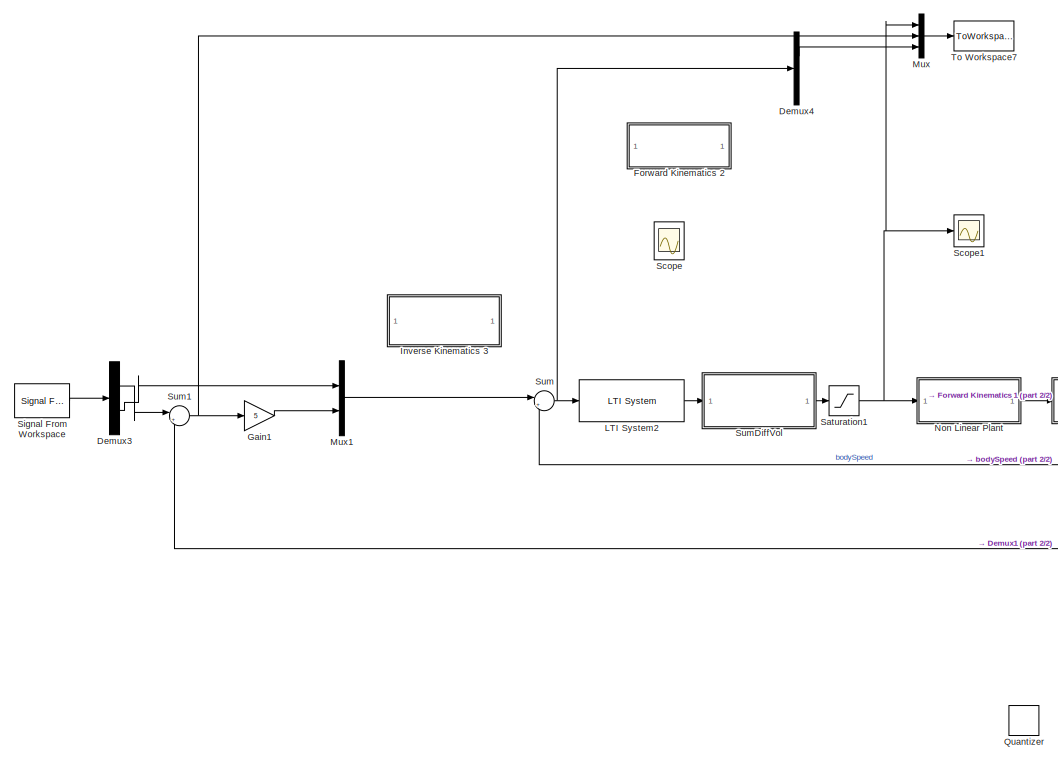
[diagram: root canvas - part 1/2, left side, full height]
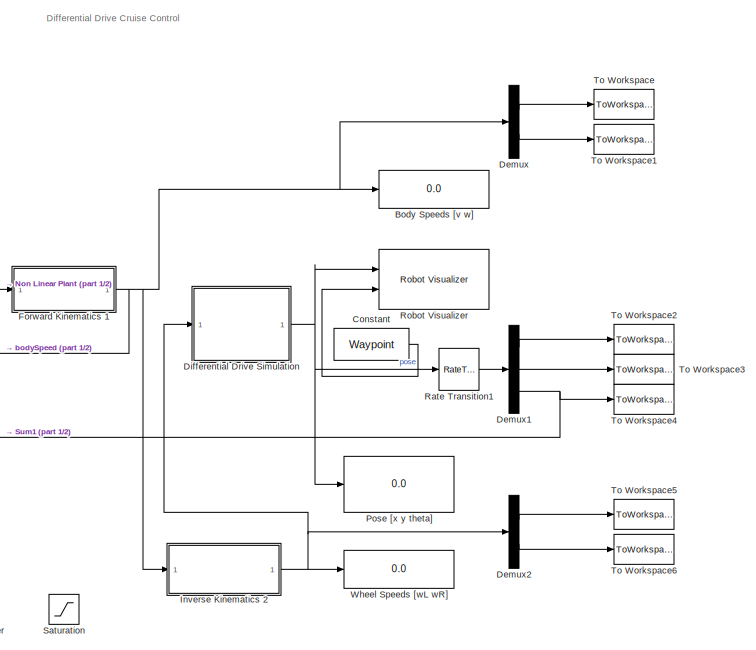
[diagram: root canvas - part 2/2, right side, full height]
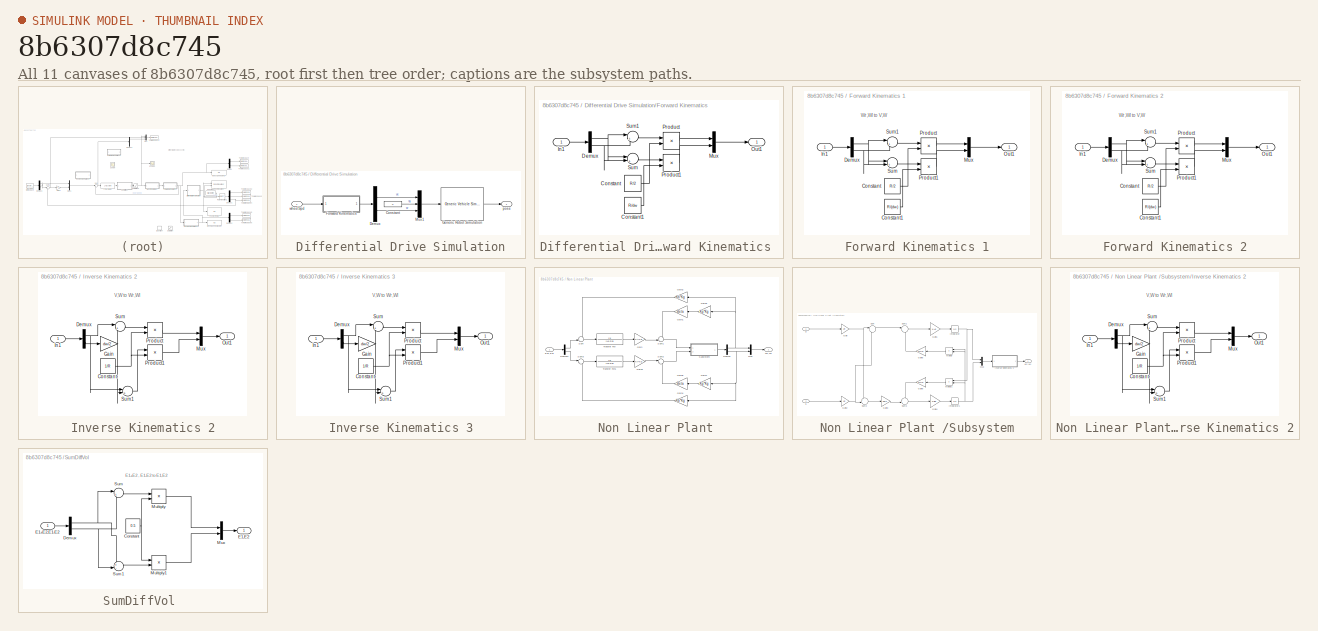
[diagram: thumbnail index - all 11 canvases of the model, root first then tree order]
MODEL slx_8b6307d8c745
KIND model
CONFIG AbsTol = auto
CONFIG EnableMultiTasking = on
CONFIG FixedStep = 0.01
CONFIG MaxStep = auto
CONFIG MinStep = auto
CONFIG PreLoadFcn = sampleTime = 0.05;\n\n% Vehicle Parameters\nR = 0.1;\nL = 0.5;
CONFIG RelTol = 1e-3
CONFIG SampleTimeConstraint = Unconstrained
CONFIG Solver = VariableStepAuto
CONFIG SolverName = VariableStepAuto
CONFIG StartTime = 0.0
CONFIG StopTime = inf
BLOCK [Display] Body Speeds [v w]
  Decimation = 1
  Ports = [1]
BLOCK [Constant] Constant
  SampleTime = sampleTime
  Value = Waypoint
BLOCK [Demux] Demux
  DisplayOption = bar
  Outputs = 2
  Ports = [1, 2]
BLOCK [Demux] Demux1
  DisplayOption = bar
  Outputs = 3
  Ports = [1, 3]
BLOCK [Demux] Demux2
  DisplayOption = bar
  Outputs = 2
  Ports = [1, 2]
BLOCK [Demux] Demux3
  DisplayOption = bar
  Outputs = 2
  Ports = [1, 2]
BLOCK [Demux] Demux4
  DisplayOption = bar
  Outputs = 2
  Ports = [1, 2]
BLOCK [SubSystem] Differential Drive Simulation
  AncestorBlock = mobileRoboticsLib/Kinematic Models/Differential Drive/Differential Drive Simulation
  OverrideUsingVariant = mode==2
  Ports = [1, 1]
  RequestExecContextInheritance = off
BLOCK [Constant] Differential Drive Simulation/Constant
  Value = 0
BLOCK [Demux] Differential Drive Simulation/Demux
  DisplayOption = bar
  Outputs = 2
  Ports = [1, 2]
BLOCK [SubSystem] Differential Drive Simulation/Forward Kinematics 
  Ports = [1, 1]
  RequestExecContextInheritance = off
BLOCK [Constant] Differential Drive Simulation/Forward Kinematics /Constant
  Value = R/2
BLOCK [Constant] Differential Drive Simulation/Forward Kinematics /Constant1
  Value = R/dw
BLOCK [Demux] Differential Drive Simulation/Forward Kinematics /Demux
  DisplayOption = bar
  Outputs = 2
  Ports = [1, 2]
BLOCK [Inport] Differential Drive Simulation/Forward Kinematics /In1
  IconDisplay = Port number
BLOCK [Mux] Differential Drive Simulation/Forward Kinematics /Mux
  DisplayOption = bar
  Inputs = 2
  Ports = [2, 1]
BLOCK [Outport] Differential Drive Simulation/Forward Kinematics /Out1
  IconDisplay = Port number
BLOCK [Product] Differential Drive Simulation/Forward Kinematics /Product
  InputSameDT = off
  OutDataTypeStr = Inherit: Inherit via internal rule
  Ports = [2, 1]
  RndMeth = Floor
  SaturateOnIntegerOverflow = off
BLOCK [Product] Differential Drive Simulation/Forward Kinematics /Product1
  InputSameDT = off
  OutDataTypeStr = Inherit: Inherit via internal rule
  Ports = [2, 1]
  RndMeth = Floor
  SaturateOnIntegerOverflow = off
BLOCK [Sum] Differential Drive Simulation/Forward Kinematics /Sum
  IconShape = round
  InputSameDT = off
  Inputs = |+-
  OutDataTypeStr = Inherit: Inherit via internal rule
  Ports = [2, 1]
  SaturateOnIntegerOverflow = off
BLOCK [Sum] Differential Drive Simulation/Forward Kinematics /Sum1
  IconShape = round
  InputSameDT = off
  Inputs = |++
  OutDataTypeStr = Inherit: Inherit via internal rule
  Ports = [2, 1]
  SaturateOnIntegerOverflow = off
BLOCK [Reference] Differential Drive Simulation/Generic Robot Simulation  REF=mobileRoboticsLib/Utilities/Generic Vehicle Simulation
  Ports = [1, 1]
  SourceBlock = mobileRoboticsLib/Utilities/Generic Vehicle Simulation
  SourceProductName = Mobile Robotics Simulation Toolbox
  SourceType = Generic Vehicle Simulation
BLOCK [Mux] Differential Drive Simulation/Mux1
  DisplayOption = bar
  Inputs = 3
  Ports = [3, 1]
BLOCK [Outport] Differential Drive Simulation/pose
  IconDisplay = Port number
BLOCK [Inport] Differential Drive Simulation/wheelSpd
  IconDisplay = Port number
BLOCK [SubSystem] Forward Kinematics 1
  Ports = [1, 1]
  RequestExecContextInheritance = off
BLOCK [Constant] Forward Kinematics 1/Constant
  Value = R/2
BLOCK [Constant] Forward Kinematics 1/Constant1
  Value = R/(dw)
BLOCK [Demux] Forward Kinematics 1/Demux
  DisplayOption = bar
  Outputs = 2
  Ports = [1, 2]
BLOCK [Inport] Forward Kinematics 1/In1
  IconDisplay = Port number
BLOCK [Mux] Forward Kinematics 1/Mux
  DisplayOption = bar
  Inputs = 2
  Ports = [2, 1]
BLOCK [Outport] Forward Kinematics 1/Out1
  IconDisplay = Port number
BLOCK [Product] Forward Kinematics 1/Product
  InputSameDT = off
  OutDataTypeStr = Inherit: Inherit via internal rule
  Ports = [2, 1]
  RndMeth = Floor
  SaturateOnIntegerOverflow = off
BLOCK [Product] Forward Kinematics 1/Product1
  InputSameDT = off
  OutDataTypeStr = Inherit: Inherit via internal rule
  Ports = [2, 1]
  RndMeth = Floor
  SaturateOnIntegerOverflow = off
BLOCK [Sum] Forward Kinematics 1/Sum
  IconShape = round
  InputSameDT = off
  Inputs = |+-
  OutDataTypeStr = Inherit: Inherit via internal rule
  Ports = [2, 1]
  SaturateOnIntegerOverflow = off
BLOCK [Sum] Forward Kinematics 1/Sum1
  IconShape = round
  InputSameDT = off
  Inputs = |++
  OutDataTypeStr = Inherit: Inherit via internal rule
  Ports = [2, 1]
  SaturateOnIntegerOverflow = off
BLOCK [SubSystem] Forward Kinematics 2
  Ports = [1, 1]
  RequestExecContextInheritance = off
BLOCK [Constant] Forward Kinematics 2/Constant
  Value = R/2
BLOCK [Constant] Forward Kinematics 2/Constant1
  Value = R/(dw)
BLOCK [Demux] Forward Kinematics 2/Demux
  DisplayOption = bar
  Outputs = 2
  Ports = [1, 2]
BLOCK [Inport] Forward Kinematics 2/In1
  IconDisplay = Port number
BLOCK [Mux] Forward Kinematics 2/Mux
  DisplayOption = bar
  Inputs = 2
  Ports = [2, 1]
BLOCK [Outport] Forward Kinematics 2/Out1
  IconDisplay = Port number
BLOCK [Product] Forward Kinematics 2/Product
  InputSameDT = off
  OutDataTypeStr = Inherit: Inherit via internal rule
  Ports = [2, 1]
  RndMeth = Floor
  SaturateOnIntegerOverflow = off
BLOCK [Product] Forward Kinematics 2/Product1
  InputSameDT = off
  OutDataTypeStr = Inherit: Inherit via internal rule
  Ports = [2, 1]
  RndMeth = Floor
  SaturateOnIntegerOverflow = off
BLOCK [Sum] Forward Kinematics 2/Sum
  IconShape = round
  InputSameDT = off
  Inputs = |+-
  OutDataTypeStr = Inherit: Inherit via internal rule
  Ports = [2, 1]
  SaturateOnIntegerOverflow = off
BLOCK [Sum] Forward Kinematics 2/Sum1
  IconShape = round
  InputSameDT = off
  Inputs = |++
  OutDataTypeStr = Inherit: Inherit via internal rule
  Ports = [2, 1]
  SaturateOnIntegerOverflow = off
BLOCK [Gain] Gain1
  Gain = 5
  OutDataTypeStr = Inherit: Inherit via internal rule
  ParamDataTypeStr = Inherit: Inherit via internal rule
  SaturateOnIntegerOverflow = off
BLOCK [SubSystem] Inverse Kinematics 2
  Ports = [1, 1]
  RequestExecContextInheritance = off
BLOCK [Constant] Inverse Kinematics 2/Constant
  Value = 1/R
BLOCK [Demux] Inverse Kinematics 2/Demux
  DisplayOption = bar
  Outputs = 2
  Ports = [1, 2]
BLOCK [Gain] Inverse Kinematics 2/Gain
  Gain = dw/2
  OutDataTypeStr = Inherit: Inherit via internal rule
  ParamDataTypeStr = Inherit: Inherit via internal rule
  SaturateOnIntegerOverflow = off
BLOCK [Inport] Inverse Kinematics 2/In1
  IconDisplay = Port number
BLOCK [Mux] Inverse Kinematics 2/Mux
  DisplayOption = bar
  Inputs = 2
  Ports = [2, 1]
BLOCK [Outport] Inverse Kinematics 2/Out1
  IconDisplay = Port number
BLOCK [Product] Inverse Kinematics 2/Product
  InputSameDT = off
  OutDataTypeStr = Inherit: Inherit via internal rule
  Ports = [2, 1]
  RndMeth = Floor
  SaturateOnIntegerOverflow = off
BLOCK [Product] Inverse Kinematics 2/Product1
  InputSameDT = off
  OutDataTypeStr = Inherit: Inherit via internal rule
  Ports = [2, 1]
  RndMeth = Floor
  SaturateOnIntegerOverflow = off
BLOCK [Sum] Inverse Kinematics 2/Sum
  IconShape = round
  InputSameDT = off
  Inputs = |++
  OutDataTypeStr = Inherit: Inherit via internal rule
  Ports = [2, 1]
  SaturateOnIntegerOverflow = off
BLOCK [Sum] Inverse Kinematics 2/Sum1
  IconShape = round
  InputSameDT = off
  Inputs = |+-
  OutDataTypeStr = Inherit: Inherit via internal rule
  Ports = [2, 1]
  SaturateOnIntegerOverflow = off
BLOCK [SubSystem] Inverse Kinematics 3
  Ports = [1, 1]
  RequestExecContextInheritance = off
BLOCK [Constant] Inverse Kinematics 3/Constant
  Value = 1/R
BLOCK [Demux] Inverse Kinematics 3/Demux
  DisplayOption = bar
  Outputs = 2
  Ports = [1, 2]
BLOCK [Gain] Inverse Kinematics 3/Gain
  Gain = dw/2
  OutDataTypeStr = Inherit: Inherit via internal rule
  ParamDataTypeStr = Inherit: Inherit via internal rule
  SaturateOnIntegerOverflow = off
BLOCK [Inport] Inverse Kinematics 3/In1
  IconDisplay = Port number
BLOCK [Mux] Inverse Kinematics 3/Mux
  DisplayOption = bar
  Inputs = 2
  Ports = [2, 1]
BLOCK [Outport] Inverse Kinematics 3/Out1
  IconDisplay = Port number
BLOCK [Product] Inverse Kinematics 3/Product
  InputSameDT = off
  OutDataTypeStr = Inherit: Inherit via internal rule
  Ports = [2, 1]
  RndMeth = Floor
  SaturateOnIntegerOverflow = off
BLOCK [Product] Inverse Kinematics 3/Product1
  InputSameDT = off
  OutDataTypeStr = Inherit: Inherit via internal rule
  Ports = [2, 1]
  RndMeth = Floor
  SaturateOnIntegerOverflow = off
BLOCK [Sum] Inverse Kinematics 3/Sum
  IconShape = round
  InputSameDT = off
  Inputs = |++
  OutDataTypeStr = Inherit: Inherit via internal rule
  Ports = [2, 1]
  SaturateOnIntegerOverflow = off
BLOCK [Sum] Inverse Kinematics 3/Sum1
  IconShape = round
  InputSameDT = off
  Inputs = |+-
  OutDataTypeStr = Inherit: Inherit via internal rule
  Ports = [2, 1]
  SaturateOnIntegerOverflow = off
BLOCK [Reference] LTI System2  REF=cstblocks/LTI System
  Ports = [1, 1]
  SourceBlock = cstblocks/LTI System
  SourceProductBaseCode = CT
  SourceProductName = Control System Toolbox
  SourceType = LTI Block
BLOCK [Mux] Mux
  DisplayOption = bar
  Inputs = 3
  Ports = [3, 1]
BLOCK [Mux] Mux1
  DisplayOption = bar
  Inputs = 2
  Ports = [2, 1]
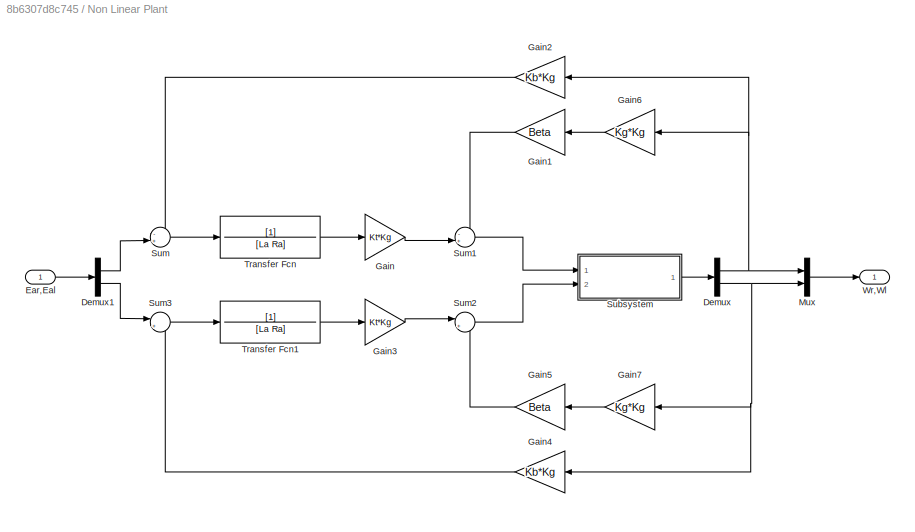
BLOCK [SubSystem] Non Linear Plant 
  Ports = [1, 1]
  RequestExecContextInheritance = off
BLOCK [Demux] Non Linear Plant /Demux
  DisplayOption = bar
  Outputs = 2
  Ports = [1, 2]
BLOCK [Demux] Non Linear Plant /Demux1
  DisplayOption = bar
  Outputs = 2
  Ports = [1, 2]
BLOCK [Inport] Non Linear Plant /Ear,Eal
  IconDisplay = Port number
BLOCK [Gain] Non Linear Plant /Gain
  Gain = Kt*Kg
  OutDataTypeStr = Inherit: Inherit via internal rule
  ParamDataTypeStr = Inherit: Inherit via internal rule
  SaturateOnIntegerOverflow = off
BLOCK [Gain] Non Linear Plant /Gain1
  Gain = Beta
  OutDataTypeStr = Inherit: Inherit via internal rule
  ParamDataTypeStr = Inherit: Inherit via internal rule
  SaturateOnIntegerOverflow = off
BLOCK [Gain] Non Linear Plant /Gain2
  Gain = Kb*Kg
  OutDataTypeStr = Inherit: Inherit via internal rule
  ParamDataTypeStr = Inherit: Inherit via internal rule
  SaturateOnIntegerOverflow = off
BLOCK [Gain] Non Linear Plant /Gain3
  Gain = Kt*Kg
  OutDataTypeStr = Inherit: Inherit via internal rule
  ParamDataTypeStr = Inherit: Inherit via internal rule
  SaturateOnIntegerOverflow = off
BLOCK [Gain] Non Linear Plant /Gain4
  Gain = Kb*Kg
  OutDataTypeStr = Inherit: Inherit via internal rule
  ParamDataTypeStr = Inherit: Inherit via internal rule
  SaturateOnIntegerOverflow = off
BLOCK [Gain] Non Linear Plant /Gain5
  Gain = Beta
  OutDataTypeStr = Inherit: Inherit via internal rule
  ParamDataTypeStr = Inherit: Inherit via internal rule
  SaturateOnIntegerOverflow = off
BLOCK [Gain] Non Linear Plant /Gain6
  Gain = Kg*Kg
  OutDataTypeStr = Inherit: Inherit via internal rule
  ParamDataTypeStr = Inherit: Inherit via internal rule
  SaturateOnIntegerOverflow = off
BLOCK [Gain] Non Linear Plant /Gain7
  Gain = Kg*Kg
  OutDataTypeStr = Inherit: Inherit via internal rule
  ParamDataTypeStr = Inherit: Inherit via internal rule
  SaturateOnIntegerOverflow = off
BLOCK [Mux] Non Linear Plant /Mux
  DisplayOption = bar
  Inputs = 2
  Ports = [2, 1]
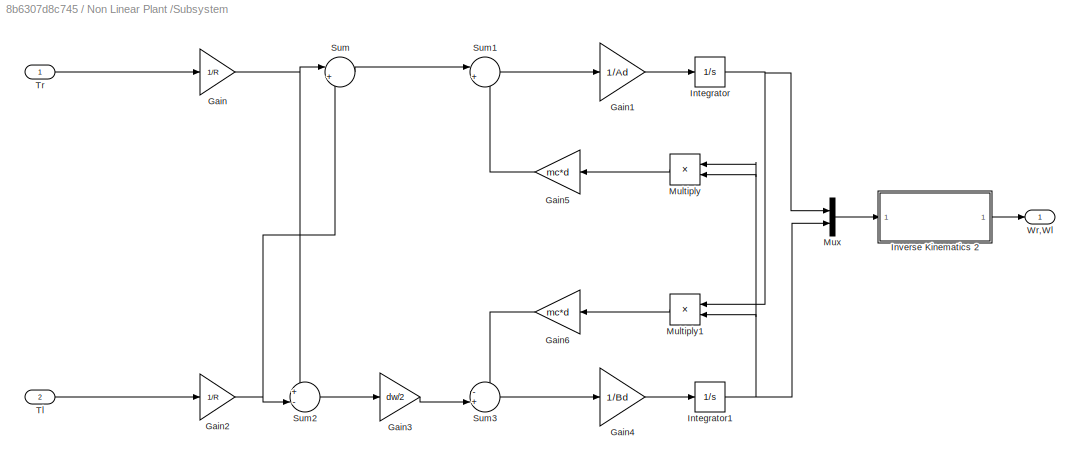
BLOCK [SubSystem] Non Linear Plant /Subsystem
  Ports = [2, 1]
  RequestExecContextInheritance = off
BLOCK [Gain] Non Linear Plant /Subsystem/Gain
  Gain = 1/R
  OutDataTypeStr = Inherit: Inherit via internal rule
  ParamDataTypeStr = Inherit: Inherit via internal rule
  SaturateOnIntegerOverflow = off
BLOCK [Gain] Non Linear Plant /Subsystem/Gain1
  Gain = 1/Ad
  OutDataTypeStr = Inherit: Inherit via internal rule
  ParamDataTypeStr = Inherit: Inherit via internal rule
  SaturateOnIntegerOverflow = off
BLOCK [Gain] Non Linear Plant /Subsystem/Gain2
  Gain = 1/R
  OutDataTypeStr = Inherit: Inherit via internal rule
  ParamDataTypeStr = Inherit: Inherit via internal rule
  SaturateOnIntegerOverflow = off
BLOCK [Gain] Non Linear Plant /Subsystem/Gain3
  Gain = dw/2
  OutDataTypeStr = Inherit: Inherit via internal rule
  ParamDataTypeStr = Inherit: Inherit via internal rule
  SaturateOnIntegerOverflow = off
BLOCK [Gain] Non Linear Plant /Subsystem/Gain4
  Gain = 1/Bd
  OutDataTypeStr = Inherit: Inherit via internal rule
  ParamDataTypeStr = Inherit: Inherit via internal rule
  SaturateOnIntegerOverflow = off
BLOCK [Gain] Non Linear Plant /Subsystem/Gain5
  Gain = mc*d
  OutDataTypeStr = Inherit: Inherit via internal rule
  ParamDataTypeStr = Inherit: Inherit via internal rule
  SaturateOnIntegerOverflow = off
BLOCK [Gain] Non Linear Plant /Subsystem/Gain6
  Gain = mc*d
  OutDataTypeStr = Inherit: Inherit via internal rule
  ParamDataTypeStr = Inherit: Inherit via internal rule
  SaturateOnIntegerOverflow = off
BLOCK [Integrator] Non Linear Plant /Subsystem/Integrator
  Ports = [1, 1]
BLOCK [Integrator] Non Linear Plant /Subsystem/Integrator1
  Ports = [1, 1]
BLOCK [SubSystem] Non Linear Plant /Subsystem/Inverse Kinematics 2
  Ports = [1, 1]
  RequestExecContextInheritance = off
BLOCK [Constant] Non Linear Plant /Subsystem/Inverse Kinematics 2/Constant
  Value = 1/R
BLOCK [Demux] Non Linear Plant /Subsystem/Inverse Kinematics 2/Demux
  DisplayOption = bar
  Outputs = 2
  Ports = [1, 2]
BLOCK [Gain] Non Linear Plant /Subsystem/Inverse Kinematics 2/Gain
  Gain = dw/2
  OutDataTypeStr = Inherit: Inherit via internal rule
  ParamDataTypeStr = Inherit: Inherit via internal rule
  SaturateOnIntegerOverflow = off
BLOCK [Inport] Non Linear Plant /Subsystem/Inverse Kinematics 2/In1
  IconDisplay = Port number
BLOCK [Mux] Non Linear Plant /Subsystem/Inverse Kinematics 2/Mux
  DisplayOption = bar
  Inputs = 2
  Ports = [2, 1]
BLOCK [Outport] Non Linear Plant /Subsystem/Inverse Kinematics 2/Out1
  IconDisplay = Port number
BLOCK [Product] Non Linear Plant /Subsystem/Inverse Kinematics 2/Product
  InputSameDT = off
  OutDataTypeStr = Inherit: Inherit via internal rule
  Ports = [2, 1]
  RndMeth = Floor
  SaturateOnIntegerOverflow = off
BLOCK [Product] Non Linear Plant /Subsystem/Inverse Kinematics 2/Product1
  InputSameDT = off
  OutDataTypeStr = Inherit: Inherit via internal rule
  Ports = [2, 1]
  RndMeth = Floor
  SaturateOnIntegerOverflow = off
BLOCK [Sum] Non Linear Plant /Subsystem/Inverse Kinematics 2/Sum
  IconShape = round
  InputSameDT = off
  Inputs = |++
  OutDataTypeStr = Inherit: Inherit via internal rule
  Ports = [2, 1]
  SaturateOnIntegerOverflow = off
BLOCK [Sum] Non Linear Plant /Subsystem/Inverse Kinematics 2/Sum1
  IconShape = round
  InputSameDT = off
  Inputs = |+-
  OutDataTypeStr = Inherit: Inherit via internal rule
  Ports = [2, 1]
  SaturateOnIntegerOverflow = off
BLOCK [Product] Non Linear Plant /Subsystem/Multiply
  InputSameDT = off
  OutDataTypeStr = Inherit: Inherit via internal rule
  Ports = [2, 1]
  RndMeth = Floor
  SaturateOnIntegerOverflow = off
BLOCK [Product] Non Linear Plant /Subsystem/Multiply1
  InputSameDT = off
  OutDataTypeStr = Inherit: Inherit via internal rule
  Ports = [2, 1]
  RndMeth = Floor
  SaturateOnIntegerOverflow = off
BLOCK [Mux] Non Linear Plant /Subsystem/Mux
  DisplayOption = bar
  Inputs = 2
  Ports = [2, 1]
BLOCK [Sum] Non Linear Plant /Subsystem/Sum
  IconShape = round
  InputSameDT = off
  Inputs = |++
  OutDataTypeStr = Inherit: Inherit via internal rule
  Ports = [2, 1]
  SaturateOnIntegerOverflow = off
BLOCK [Sum] Non Linear Plant /Subsystem/Sum1
  IconShape = round
  InputSameDT = off
  Inputs = |++
  OutDataTypeStr = Inherit: Inherit via internal rule
  Ports = [2, 1]
  SaturateOnIntegerOverflow = off
BLOCK [Sum] Non Linear Plant /Subsystem/Sum2
  IconShape = round
  InputSameDT = off
  Inputs = +-|
  OutDataTypeStr = Inherit: Inherit via internal rule
  Ports = [2, 1]
  SaturateOnIntegerOverflow = off
BLOCK [Sum] Non Linear Plant /Subsystem/Sum3
  IconShape = round
  InputSameDT = off
  Inputs = -+|
  OutDataTypeStr = Inherit: Inherit via internal rule
  Ports = [2, 1]
  SaturateOnIntegerOverflow = off
BLOCK [Inport] Non Linear Plant /Subsystem/Tl
  IconDisplay = Port number
  Port = 2
BLOCK [Inport] Non Linear Plant /Subsystem/Tr
  IconDisplay = Port number and signal name
BLOCK [Outport] Non Linear Plant /Subsystem/Wr,Wl
  IconDisplay = Port number
BLOCK [Sum] Non Linear Plant /Sum
  IconShape = round
  InputSameDT = off
  Inputs = -+|
  OutDataTypeStr = Inherit: Inherit via internal rule
  Ports = [2, 1]
  SaturateOnIntegerOverflow = off
BLOCK [Sum] Non Linear Plant /Sum1
  IconShape = round
  InputSameDT = off
  Inputs = -+|
  OutDataTypeStr = Inherit: Inherit via internal rule
  Ports = [2, 1]
  SaturateOnIntegerOverflow = off
BLOCK [Sum] Non Linear Plant /Sum2
  IconShape = round
  InputSameDT = off
  Inputs = |+-
  OutDataTypeStr = Inherit: Inherit via internal rule
  Ports = [2, 1]
  SaturateOnIntegerOverflow = off
BLOCK [Sum] Non Linear Plant /Sum3
  IconShape = round
  InputSameDT = off
  Inputs = |+-
  OutDataTypeStr = Inherit: Inherit via internal rule
  Ports = [2, 1]
  SaturateOnIntegerOverflow = off
BLOCK [TransferFcn] Non Linear Plant /Transfer Fcn
  Denominator = [La Ra]
BLOCK [TransferFcn] Non Linear Plant /Transfer Fcn1
  Denominator = [La Ra]
BLOCK [Outport] Non Linear Plant /Wr,Wl
  IconDisplay = Port number
BLOCK [Display] Pose [x y theta]
  Decimation = 1
  Ports = [1]
BLOCK [Quantizer] Quantizer
BLOCK [RateTransition] Rate Transition1
  OutPortSampleTime = 0.01
BLOCK [Reference] Robot Visualizer  REF=mobileRoboticsLib/Environments/Robot Visualizer
  Ports = [2]
  Priority = 99
  SourceBlock = mobileRoboticsLib/Environments/Robot Visualizer
  SourceProductName = Mobile Robotics Simulation Library
  SourceType = Visualizer2D
BLOCK [Saturate] Saturation
  InputPortMap = u0
  Ports = [1, 1]
BLOCK [Saturate] Saturation1
  InputPortMap = u0
  LowerLimit = 0
  Ports = [1, 1]
  UpperLimit = 30
BLOCK [Scope] Scope
  Floating = off
  NumInputPorts = 1
  Ports = [1]
  ScopeSpecificationString = Simulink.scopes.TimeScopeBlockCfg('CurrentConfiguration', extmgr.ConfigurationSet(extmgr.Configuration('Core','General UI',true),extmgr.Configuration('Core','Source UI',true),extmgr.Configuration('Sources','WiredSimulink',true),extmgr.Configuration('Visuals','Time Domain',true,'SerializedDisplays',{struct('MinYLimReal','-0.07902','MaxYLimReal','0.0187','YLabelReal','','MinYLimMag','0.00000','MaxYL...<+1399ch>
BLOCK [Scope] Scope1
  Floating = off
  NumInputPorts = 1
  Ports = [1]
  ScopeSpecificationString = Simulink.scopes.TimeScopeBlockCfg('CurrentConfiguration', extmgr.ConfigurationSet(extmgr.Configuration('Core','General UI',true),extmgr.Configuration('Core','Source UI',true),extmgr.Configuration('Sources','WiredSimulink',true,'DataLoggingVariableName','ScopeData1'),extmgr.Configuration('Visuals','Time Domain',true,'SerializedDisplays',{struct('MinYLimReal','21.10512','MaxYLimReal','30.98832','YLa...<+1467ch>
BLOCK [Reference] Signal From Workspace  REF=dspsrcs4/Signal From
Workspace
  Ports = [0, 1]
  SourceBlock = dspsrcs4/Signal From\nWorkspace
  SourceProductBaseCode = DS
  SourceProductName = DSP System Toolbox
  SourceType = Signal From Workspace
BLOCK [Sum] Sum
  IconShape = round
  InputSameDT = off
  Inputs = |+-
  OutDataTypeStr = Inherit: Inherit via internal rule
  Ports = [2, 1]
  SaturateOnIntegerOverflow = off
BLOCK [Sum] Sum1
  IconShape = round
  InputSameDT = off
  Inputs = |+-
  OutDataTypeStr = Inherit: Inherit via internal rule
  Ports = [2, 1]
  SaturateOnIntegerOverflow = off
BLOCK [SubSystem] SumDiffVol 
  Ports = [1, 1]
  RequestExecContextInheritance = off
BLOCK [Constant] SumDiffVol /Constant
  Value = 0.5
BLOCK [Demux] SumDiffVol /Demux
  DisplayOption = bar
  Outputs = 2
  Ports = [1, 2]
BLOCK [Inport] SumDiffVol /E1+E2,E1-E2
  IconDisplay = Port number
BLOCK [Outport] SumDiffVol /E1,E2
  IconDisplay = Port number
BLOCK [Product] SumDiffVol /Multiply
  InputSameDT = off
  OutDataTypeStr = Inherit: Inherit via internal rule
  Ports = [2, 1]
  RndMeth = Floor
  SaturateOnIntegerOverflow = off
BLOCK [Product] SumDiffVol /Multiply1
  InputSameDT = off
  OutDataTypeStr = Inherit: Inherit via internal rule
  Ports = [2, 1]
  RndMeth = Floor
  SaturateOnIntegerOverflow = off
BLOCK [Mux] SumDiffVol /Mux
  DisplayOption = bar
  Inputs = 2
  Ports = [2, 1]
BLOCK [Sum] SumDiffVol /Sum
  IconShape = round
  InputSameDT = off
  Inputs = |++
  OutDataTypeStr = Inherit: Inherit via internal rule
  Ports = [2, 1]
  SaturateOnIntegerOverflow = off
BLOCK [Sum] SumDiffVol /Sum1
  IconShape = round
  InputSameDT = off
  Inputs = +-|
  OutDataTypeStr = Inherit: Inherit via internal rule
  Ports = [2, 1]
  SaturateOnIntegerOverflow = off
BLOCK [ToWorkspace] To Workspace
  FixptAsFi = on
  MaxDataPoints = inf
  Ports = [1]
  SampleTime = -1
  Save2DSignal = 3-D array (concatenate along third dimension)
  VariableName = v
BLOCK [ToWorkspace] To Workspace1
  FixptAsFi = on
  MaxDataPoints = inf
  Ports = [1]
  SampleTime = -1
  Save2DSignal = 3-D array (concatenate along third dimension)
  VariableName = w
BLOCK [ToWorkspace] To Workspace2
  FixptAsFi = on
  MaxDataPoints = inf
  Ports = [1]
  SampleTime = -1
  Save2DSignal = 3-D array (concatenate along third dimension)
  VariableName = X
BLOCK [ToWorkspace] To Workspace3
  FixptAsFi = on
  MaxDataPoints = inf
  Ports = [1]
  SampleTime = -1
  Save2DSignal = 3-D array (concatenate along third dimension)
  VariableName = Y
BLOCK [ToWorkspace] To Workspace4
  FixptAsFi = on
  MaxDataPoints = inf
  Ports = [1]
  SampleTime = -1
  Save2DSignal = 3-D array (concatenate along third dimension)
  VariableName = theta
BLOCK [ToWorkspace] To Workspace5
  FixptAsFi = on
  MaxDataPoints = inf
  Ports = [1]
  SampleTime = -1
  Save2DSignal = 3-D array (concatenate along third dimension)
  VariableName = wL
BLOCK [ToWorkspace] To Workspace6
  FixptAsFi = on
  MaxDataPoints = inf
  Ports = [1]
  SampleTime = -1
  Save2DSignal = 3-D array (concatenate along third dimension)
  VariableName = wR
BLOCK [ToWorkspace] To Workspace7
  FixptAsFi = on
  MaxDataPoints = inf
  Ports = [1]
  SampleTime = -1
  Save2DSignal = 3-D array (concatenate along third dimension)
  SaveFormat = Timeseries
  VariableName = v1
BLOCK [Display] Wheel Speeds [wL wR]
  Decimation = 1
  Ports = [1]
ANNOTATION (root): Differential Drive Cruise Control
ANNOTATION Forward Kinematics 1: Wr,Wl to V,W
ANNOTATION Forward Kinematics 2: Wr,Wl to V,W
ANNOTATION Inverse Kinematics 2: V,W to Wr,Wl
ANNOTATION Inverse Kinematics 3: V,W to Wr,Wl
ANNOTATION Non Linear Plant /Subsystem/Inverse Kinematics 2: V,W to Wr,Wl
ANNOTATION SumDiffVol : E1+E2 , E1-E2 to E1,E2
LINE Constant:1 -> Robot Visualizer:2
LINE Demux1:1 -> To Workspace2:1
LINE Demux1:2 -> To Workspace3:1
NET Demux1:3 -> Sum1:2, To Workspace4:1
LINE Demux2:1 -> To Workspace5:1
LINE Demux2:2 -> To Workspace6:1
LINE Demux3:1 -> Sum1:1
LINE Demux3:2 -> Mux1:1
LINE Demux4:1 -> Mux:3
LINE Demux:1 -> To Workspace:1
LINE Demux:2 -> To Workspace1:1
NET Differential Drive Simulation:1 -> Pose [x y theta]:1, Rate Transition1:1, Robot Visualizer:1
LINE Forward Kinematics 1/Constant1:1 -> Forward Kinematics 1/Product1:2
LINE Forward Kinematics 1/Constant:1 -> Forward Kinematics 1/Product:2
NET Forward Kinematics 1/Demux:1 -> Forward Kinematics 1/Sum1:1, Forward Kinematics 1/Sum:1
NET Forward Kinematics 1/Demux:2 -> Forward Kinematics 1/Sum1:2, Forward Kinematics 1/Sum:2
LINE Forward Kinematics 1/In1:1 -> Forward Kinematics 1/Demux:1
LINE Forward Kinematics 1/Mux:1 -> Forward Kinematics 1/Out1:1
LINE Forward Kinematics 1/Product1:1 -> Forward Kinematics 1/Mux:2
LINE Forward Kinematics 1/Product:1 -> Forward Kinematics 1/Mux:1
LINE Forward Kinematics 1/Sum1:1 -> Forward Kinematics 1/Product:1
LINE Forward Kinematics 1/Sum:1 -> Forward Kinematics 1/Product1:1
NET Forward Kinematics 1:1 -> Body Speeds [v w]:1, Demux:1, Inverse Kinematics 2:1, Sum:2
LINE Forward Kinematics 2/Constant1:1 -> Forward Kinematics 2/Product1:2
LINE Forward Kinematics 2/Constant:1 -> Forward Kinematics 2/Product:2
NET Forward Kinematics 2/Demux:1 -> Forward Kinematics 2/Sum1:1, Forward Kinematics 2/Sum:1
NET Forward Kinematics 2/Demux:2 -> Forward Kinematics 2/Sum1:2, Forward Kinematics 2/Sum:2
LINE Forward Kinematics 2/In1:1 -> Forward Kinematics 2/Demux:1
LINE Forward Kinematics 2/Mux:1 -> Forward Kinematics 2/Out1:1
LINE Forward Kinematics 2/Product1:1 -> Forward Kinematics 2/Mux:2
LINE Forward Kinematics 2/Product:1 -> Forward Kinematics 2/Mux:1
LINE Forward Kinematics 2/Sum1:1 -> Forward Kinematics 2/Product:1
LINE Forward Kinematics 2/Sum:1 -> Forward Kinematics 2/Product1:1
LINE Gain1:1 -> Mux1:2
NET Inverse Kinematics 2/Constant:1 -> Inverse Kinematics 2/Product1:2, Inverse Kinematics 2/Product:2
NET Inverse Kinematics 2/Demux:1 -> Inverse Kinematics 2/Sum1:1, Inverse Kinematics 2/Sum:1
LINE Inverse Kinematics 2/Demux:2 -> Inverse Kinematics 2/Gain:1
NET Inverse Kinematics 2/Gain:1 -> Inverse Kinematics 2/Sum1:2, Inverse Kinematics 2/Sum:2
LINE Inverse Kinematics 2/In1:1 -> Inverse Kinematics 2/Demux:1
LINE Inverse Kinematics 2/Mux:1 -> Inverse Kinematics 2/Out1:1
LINE Inverse Kinematics 2/Product1:1 -> Inverse Kinematics 2/Mux:2
LINE Inverse Kinematics 2/Product:1 -> Inverse Kinematics 2/Mux:1
LINE Inverse Kinematics 2/Sum1:1 -> Inverse Kinematics 2/Product1:1
LINE Inverse Kinematics 2/Sum:1 -> Inverse Kinematics 2/Product:1
NET Inverse Kinematics 2:1 -> Demux2:1, Differential Drive Simulation:1, Wheel Speeds [wL wR]:1
NET Inverse Kinematics 3/Constant:1 -> Inverse Kinematics 3/Product1:2, Inverse Kinematics 3/Product:2
NET Inverse Kinematics 3/Demux:1 -> Inverse Kinematics 3/Sum1:1, Inverse Kinematics 3/Sum:1
LINE Inverse Kinematics 3/Demux:2 -> Inverse Kinematics 3/Gain:1
NET Inverse Kinematics 3/Gain:1 -> Inverse Kinematics 3/Sum1:2, Inverse Kinematics 3/Sum:2
LINE Inverse Kinematics 3/In1:1 -> Inverse Kinematics 3/Demux:1
LINE Inverse Kinematics 3/Mux:1 -> Inverse Kinematics 3/Out1:1
LINE Inverse Kinematics 3/Product1:1 -> Inverse Kinematics 3/Mux:2
LINE Inverse Kinematics 3/Product:1 -> Inverse Kinematics 3/Mux:1
LINE Inverse Kinematics 3/Sum1:1 -> Inverse Kinematics 3/Product1:1
LINE Inverse Kinematics 3/Sum:1 -> Inverse Kinematics 3/Product:1
LINE LTI System2:1 -> SumDiffVol :1
LINE Mux1:1 -> Sum:1
LINE Mux:1 -> To Workspace7:1
LINE Non Linear Plant /Demux1:1 -> Non Linear Plant /Sum:2
LINE Non Linear Plant /Demux1:2 -> Non Linear Plant /Sum3:1
NET Non Linear Plant /Demux:1 -> Non Linear Plant /Gain2:1, Non Linear Plant /Gain6:1, Non Linear Plant /Mux:1
NET Non Linear Plant /Demux:2 -> Non Linear Plant /Gain4:1, Non Linear Plant /Gain7:1, Non Linear Plant /Mux:2
LINE Non Linear Plant /Ear,Eal:1 -> Non Linear Plant /Demux1:1
LINE Non Linear Plant /Gain1:1 -> Non Linear Plant /Sum1:1
LINE Non Linear Plant /Gain2:1 -> Non Linear Plant /Sum:1
LINE Non Linear Plant /Gain3:1 -> Non Linear Plant /Sum2:1
LINE Non Linear Plant /Gain4:1 -> Non Linear Plant /Sum3:2
LINE Non Linear Plant /Gain5:1 -> Non Linear Plant /Sum2:2
LINE Non Linear Plant /Gain6:1 -> Non Linear Plant /Gain1:1
LINE Non Linear Plant /Gain7:1 -> Non Linear Plant /Gain5:1
LINE Non Linear Plant /Gain:1 -> Non Linear Plant /Sum1:2
LINE Non Linear Plant /Mux:1 -> Non Linear Plant /Wr,Wl:1
LINE Non Linear Plant /Subsystem/Gain1:1 -> Non Linear Plant /Subsystem/Integrator:1
NET Non Linear Plant /Subsystem/Gain2:1 -> Non Linear Plant /Subsystem/Sum2:2, Non Linear Plant /Subsystem/Sum:2
LINE Non Linear Plant /Subsystem/Gain3:1 -> Non Linear Plant /Subsystem/Sum3:2
LINE Non Linear Plant /Subsystem/Gain4:1 -> Non Linear Plant /Subsystem/Integrator1:1
LINE Non Linear Plant /Subsystem/Gain5:1 -> Non Linear Plant /Subsystem/Sum1:2
LINE Non Linear Plant /Subsystem/Gain6:1 -> Non Linear Plant /Subsystem/Sum3:1
NET Non Linear Plant /Subsystem/Gain:1 -> Non Linear Plant /Subsystem/Sum2:1, Non Linear Plant /Subsystem/Sum:1
NET Non Linear Plant /Subsystem/Integrator1:1 -> Non Linear Plant /Subsystem/Multiply1:2, Non Linear Plant /Subsystem/Multiply:1, Non Linear Plant /Subsystem/Multiply:2, Non Linear Plant /Subsystem/Mux:2
NET Non Linear Plant /Subsystem/Integrator:1 -> Non Linear Plant /Subsystem/Multiply1:1, Non Linear Plant /Subsystem/Mux:1
NET Non Linear Plant /Subsystem/Inverse Kinematics 2/Constant:1 -> Non Linear Plant /Subsystem/Inverse Kinematics 2/Product1:2, Non Linear Plant /Subsystem/Inverse Kinematics 2/Product:2
NET Non Linear Plant /Subsystem/Inverse Kinematics 2/Demux:1 -> Non Linear Plant /Subsystem/Inverse Kinematics 2/Sum1:1, Non Linear Plant /Subsystem/Inverse Kinematics 2/Sum:1
LINE Non Linear Plant /Subsystem/Inverse Kinematics 2/Demux:2 -> Non Linear Plant /Subsystem/Inverse Kinematics 2/Gain:1
NET Non Linear Plant /Subsystem/Inverse Kinematics 2/Gain:1 -> Non Linear Plant /Subsystem/Inverse Kinematics 2/Sum1:2, Non Linear Plant /Subsystem/Inverse Kinematics 2/Sum:2
LINE Non Linear Plant /Subsystem/Inverse Kinematics 2/In1:1 -> Non Linear Plant /Subsystem/Inverse Kinematics 2/Demux:1
LINE Non Linear Plant /Subsystem/Inverse Kinematics 2/Mux:1 -> Non Linear Plant /Subsystem/Inverse Kinematics 2/Out1:1
LINE Non Linear Plant /Subsystem/Inverse Kinematics 2/Product1:1 -> Non Linear Plant /Subsystem/Inverse Kinematics 2/Mux:2
LINE Non Linear Plant /Subsystem/Inverse Kinematics 2/Product:1 -> Non Linear Plant /Subsystem/Inverse Kinematics 2/Mux:1
LINE Non Linear Plant /Subsystem/Inverse Kinematics 2/Sum1:1 -> Non Linear Plant /Subsystem/Inverse Kinematics 2/Product1:1
LINE Non Linear Plant /Subsystem/Inverse Kinematics 2/Sum:1 -> Non Linear Plant /Subsystem/Inverse Kinematics 2/Product:1
LINE Non Linear Plant /Subsystem/Inverse Kinematics 2:1 -> Non Linear Plant /Subsystem/Wr,Wl:1
LINE Non Linear Plant /Subsystem/Multiply1:1 -> Non Linear Plant /Subsystem/Gain6:1
LINE Non Linear Plant /Subsystem/Multiply:1 -> Non Linear Plant /Subsystem/Gain5:1
LINE Non Linear Plant /Subsystem/Mux:1 -> Non Linear Plant /Subsystem/Inverse Kinematics 2:1
LINE Non Linear Plant /Subsystem/Sum1:1 -> Non Linear Plant /Subsystem/Gain1:1
LINE Non Linear Plant /Subsystem/Sum2:1 -> Non Linear Plant /Subsystem/Gain3:1
LINE Non Linear Plant /Subsystem/Sum3:1 -> Non Linear Plant /Subsystem/Gain4:1
LINE Non Linear Plant /Subsystem/Sum:1 -> Non Linear Plant /Subsystem/Sum1:1
LINE Non Linear Plant /Subsystem/Tl:1 -> Non Linear Plant /Subsystem/Gain2:1
LINE Non Linear Plant /Subsystem/Tr:1 -> Non Linear Plant /Subsystem/Gain:1
LINE Non Linear Plant /Subsystem:1 -> Non Linear Plant /Demux:1
LINE Non Linear Plant /Sum1:1 -> Non Linear Plant /Subsystem:1
LINE Non Linear Plant /Sum2:1 -> Non Linear Plant /Subsystem:2
LINE Non Linear Plant /Sum3:1 -> Non Linear Plant /Transfer Fcn1:1
LINE Non Linear Plant /Sum:1 -> Non Linear Plant /Transfer Fcn:1
LINE Non Linear Plant /Transfer Fcn1:1 -> Non Linear Plant /Gain3:1
LINE Non Linear Plant /Transfer Fcn:1 -> Non Linear Plant /Gain:1
LINE Non Linear Plant :1 -> Forward Kinematics 1:1
LINE Rate Transition1:1 -> Demux1:1
NET Saturation1:1 -> Mux:1, Non Linear Plant :1, Scope1:1
LINE Signal From Workspace:1 -> Demux3:1
NET Sum1:1 -> Gain1:1, Mux:2
NET Sum:1 -> Demux4:1, LTI System2:1
NET SumDiffVol /Constant:1 -> SumDiffVol /Multiply1:1, SumDiffVol /Multiply:2
NET SumDiffVol /Demux:1 -> SumDiffVol /Sum1:1, SumDiffVol /Sum:1
NET SumDiffVol /Demux:2 -> SumDiffVol /Sum1:2, SumDiffVol /Sum:2
LINE SumDiffVol /E1+E2,E1-E2:1 -> SumDiffVol /Demux:1
LINE SumDiffVol /Multiply1:1 -> SumDiffVol /Mux:2
LINE SumDiffVol /Multiply:1 -> SumDiffVol /Mux:1
LINE SumDiffVol /Mux:1 -> SumDiffVol /E1,E2:1
LINE SumDiffVol /Sum1:1 -> SumDiffVol /Multiply1:2
LINE SumDiffVol /Sum:1 -> SumDiffVol /Multiply:1
LINE SumDiffVol :1 -> Saturation1:1
note: NET lines group one-source signal fan-out (src -> all destinations, sorted); 1:1 wires keep LINE
